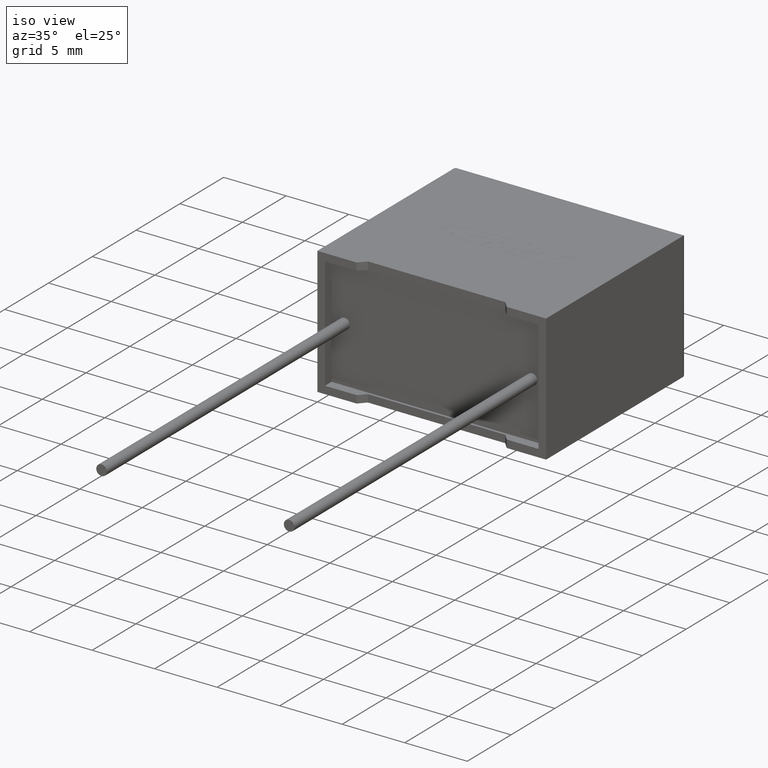
[diagram: clean part render]
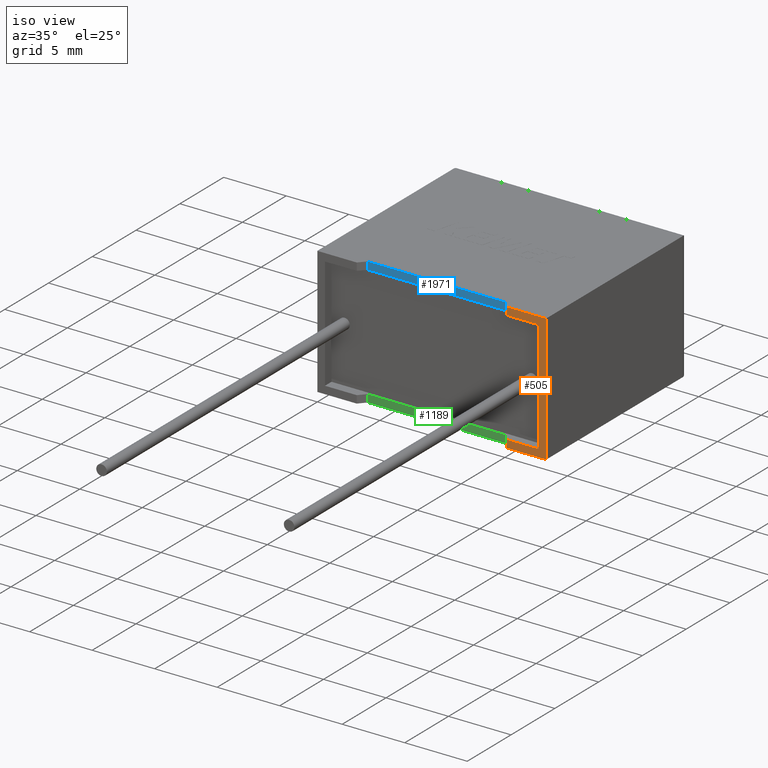
[diagram: same view with three faces highlighted in distinct colors, each labeled with its STEP entity id]
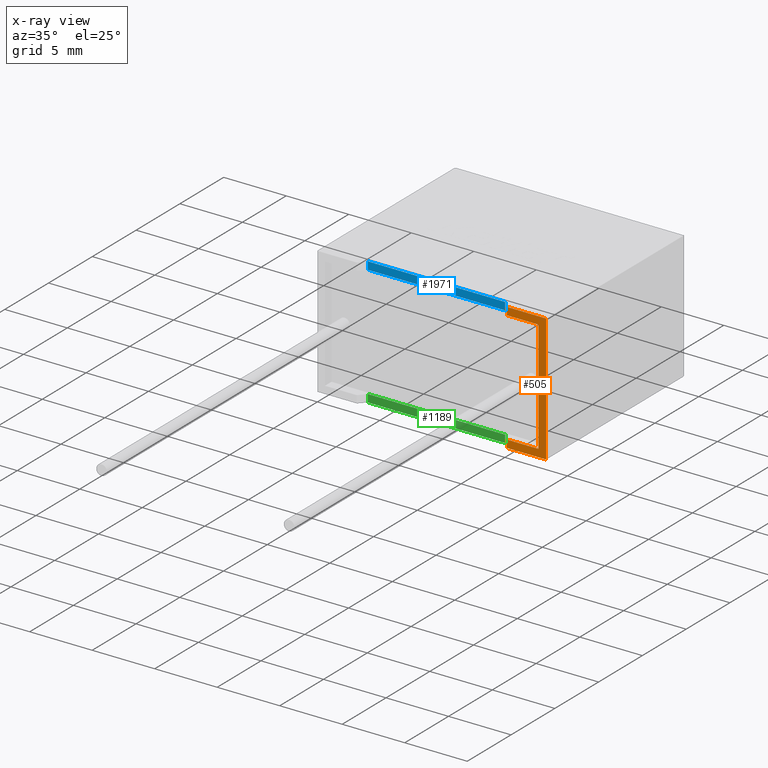
[diagram: x-ray of the same camera — body ghosted, the three highlighted faces saturated]
A machine part, iso view with three faces highlighted in distinct colors.
The next image is the same camera in x-ray (body ghosted, the three faces saturated) — at least one of them is partly hidden behind the body in this view.
Their STEP definitions:

[orange] entity #505 — the highlighted planar face has unit normal (0, 1, 0).
#17 = LINE ( 'NONE', #1197, #3006 ) ;
#83 = FACE_OUTER_BOUND ( 'NONE', #1845, .T. ) ;
#116 = VERTEX_POINT ( 'NONE', #1887 ) ;
#127 = CARTESIAN_POINT ( 'NONE',  ( 15.15000000000000036, 1.928818708657082084E-16, 0.000000000000000000 ) ) ;
#155 = DIRECTION ( 'NONE',  ( 0.000000000000000000, 0.000000000000000000, 1.000000000000000000 ) ) ;
#234 = VECTOR ( 'NONE', #155, 1000.000000000000000 ) ;
#249 = LINE ( 'NONE', #3056, #1912 ) ;
#276 = AXIS2_PLACEMENT_3D ( 'NONE', #1318, #365, #850 ) ;
#347 = DIRECTION ( 'NONE',  ( -0.000000000000000000, -0.000000000000000000, 1.000000000000000000 ) ) ;
#362 = CARTESIAN_POINT ( 'NONE',  ( 18.30000000000000071, 0.000000000000000000, 10.19999999999999929 ) ) ;
#365 = DIRECTION ( 'NONE',  ( 0.000000000000000000, 1.000000000000000000, 0.000000000000000000 ) ) ;
#404 = VERTEX_POINT ( 'NONE', #1679 ) ;
#422 = DIRECTION ( 'NONE',  ( 1.000000000000000000, 0.000000000000000000, 0.000000000000000000 ) ) ;
#505 = ADVANCED_FACE ( 'NONE', ( #83 ), #1005, .F. ) ;
#542 = LINE ( 'NONE', #1889, #2298 ) ;
#739 = DIRECTION ( 'NONE',  ( -1.000000000000000000, 0.000000000000000000, -1.015646055963656327E-16 ) ) ;
#850 = DIRECTION ( 'NONE',  ( 0.000000000000000000, -0.000000000000000000, 1.000000000000000000 ) ) ;
#857 = ORIENTED_EDGE ( 'NONE', *, *, #1819, .F. ) ;
#925 = LINE ( 'NONE', #2189, #1695 ) ;
#997 = VECTOR ( 'NONE', #1326, 1000.000000000000000 ) ;
#1005 = PLANE ( 'NONE',  #276 ) ;
#1020 = EDGE_CURVE ( 'NONE', #1117, #1279, #1981, .T. ) ;
#1030 = ORIENTED_EDGE ( 'NONE', *, *, #1020, .F. ) ;
#1068 = CARTESIAN_POINT ( 'NONE',  ( 17.69000006100000277, 0.000000000000000000, 9.590000060999999576 ) ) ;
#1113 = VERTEX_POINT ( 'NONE', #362 ) ;
#1117 = VERTEX_POINT ( 'NONE', #127 ) ;
#1123 = CARTESIAN_POINT ( 'NONE',  ( 0.000000000000000000, 0.000000000000000000, 10.19999999999999929 ) ) ;
#1194 = VERTEX_POINT ( 'NONE', #1533 ) ;
#1197 = CARTESIAN_POINT ( 'NONE',  ( 15.15000000000000036, 1.928818708657082084E-16, 0.000000000000000000 ) ) ;
#1207 = EDGE_CURVE ( 'NONE', #1544, #1662, #1990, .T. ) ;
#1279 = VERTEX_POINT ( 'NONE', #2414 ) ;
#1318 = CARTESIAN_POINT ( 'NONE',  ( 0.000000000000000000, 0.000000000000000000, 10.19999999999999929 ) ) ;
#1326 = DIRECTION ( 'NONE',  ( 1.000000000000000000, 0.000000000000000000, 0.000000000000000000 ) ) ;
#1429 = LINE ( 'NONE', #1123, #1663 ) ;
#1533 = CARTESIAN_POINT ( 'NONE',  ( 15.15000000000000036, 1.928818708657082084E-16, 9.590000060999999576 ) ) ;
#1544 = VERTEX_POINT ( 'NONE', #1682 ) ;
#1556 = ORIENTED_EDGE ( 'NONE', *, *, #2627, .F. ) ;
#1564 = EDGE_CURVE ( 'NONE', #1113, #116, #542, .T. ) ;
#1569 = CARTESIAN_POINT ( 'NONE',  ( 0.6099999390000000465, 0.000000000000000000, 0.6099999390000000465 ) ) ;
#1662 = VERTEX_POINT ( 'NONE', #1068 ) ;
#1663 = VECTOR ( 'NONE', #2331, 1000.000000000000000 ) ;
#1679 = CARTESIAN_POINT ( 'NONE',  ( 15.15000000000000036, 1.928818708657082084E-16, 10.19999999999999929 ) ) ;
#1682 = CARTESIAN_POINT ( 'NONE',  ( 17.69000006100000277, 0.000000000000000000, 0.6099999390000000465 ) ) ;
#1695 = VECTOR ( 'NONE', #739, 1000.000000000000000 ) ;
#1715 = CARTESIAN_POINT ( 'NONE',  ( 15.15000000000000036, 1.928818708657082084E-16, 0.000000000000000000 ) ) ;
#1793 = VECTOR ( 'NONE', #347, 1000.000000000000000 ) ;
#1819 = EDGE_CURVE ( 'NONE', #1279, #1544, #3001, .T. ) ;
#1845 = EDGE_LOOP ( 'NONE', ( #1030, #2916, #2167, #2596, #1556, #2215, #2959, #857 ) ) ;
#1887 = CARTESIAN_POINT ( 'NONE',  ( 18.30000000000000071, 0.000000000000000000, 0.000000000000000000 ) ) ;
#1889 = CARTESIAN_POINT ( 'NONE',  ( 18.30000000000000071, 0.000000000000000000, 10.19999999999999929 ) ) ;
#1896 = EDGE_CURVE ( 'NONE', #1662, #1194, #925, .T. ) ;
#1912 = VECTOR ( 'NONE', #422, 1000.000000000000000 ) ;
#1981 = LINE ( 'NONE', #1715, #1793 ) ;
#1990 = LINE ( 'NONE', #2965, #234 ) ;
#2167 = ORIENTED_EDGE ( 'NONE', *, *, #1564, .F. ) ;
#2189 = CARTESIAN_POINT ( 'NONE',  ( 17.69000006100000277, 0.000000000000000000, 9.590000060999999576 ) ) ;
#2215 = ORIENTED_EDGE ( 'NONE', *, *, #1896, .F. ) ;
#2298 = VECTOR ( 'NONE', #2408, 1000.000000000000000 ) ;
#2331 = DIRECTION ( 'NONE',  ( 1.000000000000000000, 0.000000000000000000, 0.000000000000000000 ) ) ;
#2408 = DIRECTION ( 'NONE',  ( -0.000000000000000000, -0.000000000000000000, -1.000000000000000000 ) ) ;
#2414 = CARTESIAN_POINT ( 'NONE',  ( 15.15000000000000036, 1.928818708657082084E-16, 0.6099999390000000465 ) ) ;
#2596 = ORIENTED_EDGE ( 'NONE', *, *, #2972, .F. ) ;
#2610 = DIRECTION ( 'NONE',  ( -0.000000000000000000, -0.000000000000000000, 1.000000000000000000 ) ) ;
#2627 = EDGE_CURVE ( 'NONE', #1194, #404, #17, .T. ) ;
#2871 = EDGE_CURVE ( 'NONE', #1117, #116, #249, .T. ) ;
#2916 = ORIENTED_EDGE ( 'NONE', *, *, #2871, .T. ) ;
#2959 = ORIENTED_EDGE ( 'NONE', *, *, #1207, .F. ) ;
#2965 = CARTESIAN_POINT ( 'NONE',  ( 17.69000006100000277, 0.000000000000000000, 0.6099999390000000465 ) ) ;
#2972 = EDGE_CURVE ( 'NONE', #404, #1113, #1429, .T. ) ;
#3001 = LINE ( 'NONE', #1569, #997 ) ;
#3006 = VECTOR ( 'NONE', #2610, 1000.000000000000000 ) ;
#3056 = CARTESIAN_POINT ( 'NONE',  ( 0.000000000000000000, 0.000000000000000000, 0.000000000000000000 ) ) ;

[blue] entity #1971 — the highlighted planar face has unit normal (-0, 1, 0).
#147 = CARTESIAN_POINT ( 'NONE',  ( 14.64180899999999852, 0.5551279999999997328, 9.590000060999999576 ) ) ;
#184 = EDGE_LOOP ( 'NONE', ( #631, #1506, #2136, #1126 ) ) ;
#552 = EDGE_CURVE ( 'NONE', #1150, #1495, #2038, .T. ) ;
#579 = CARTESIAN_POINT ( 'NONE',  ( 14.64180899999999852, 0.5551279999999997328, 10.19999999999999929 ) ) ;
#588 = FACE_OUTER_BOUND ( 'NONE', #184, .T. ) ;
#613 = CARTESIAN_POINT ( 'NONE',  ( 3.658191000000000859, 0.5551279999999997328, 10.19999999999999929 ) ) ;
#631 = ORIENTED_EDGE ( 'NONE', *, *, #2243, .F. ) ;
#682 = LINE ( 'NONE', #1100, #1371 ) ;
#803 = CARTESIAN_POINT ( 'NONE',  ( 9.150000000000000355, 0.5551280000000005099, 0.000000000000000000 ) ) ;
#824 = CARTESIAN_POINT ( 'NONE',  ( 3.658191000000000859, 0.5551279999999997328, 0.000000000000000000 ) ) ;
#858 = CARTESIAN_POINT ( 'NONE',  ( 14.64180899999999852, 0.5551279999999997328, 0.000000000000000000 ) ) ;
#1100 = CARTESIAN_POINT ( 'NONE',  ( 17.69000006100000277, 0.5551280000000017312, 9.590000060999999576 ) ) ;
#1126 = ORIENTED_EDGE ( 'NONE', *, *, #2805, .F. ) ;
#1144 = LINE ( 'NONE', #858, #3052 ) ;
#1150 = VERTEX_POINT ( 'NONE', #579 ) ;
#1268 = CARTESIAN_POINT ( 'NONE',  ( 9.150000000000000355, 0.5551280000000005099, 10.19999999999999929 ) ) ;
#1282 = DIRECTION ( 'NONE',  ( -1.381951777164597720E-16, 1.000000000000000000, 0.000000000000000000 ) ) ;
#1297 = LINE ( 'NONE', #824, #2611 ) ;
#1344 = DIRECTION ( 'NONE',  ( -0.000000000000000000, -0.000000000000000000, 1.000000000000000000 ) ) ;
#1371 = VECTOR ( 'NONE', #2990, 1000.000000000000000 ) ;
#1495 = VERTEX_POINT ( 'NONE', #613 ) ;
#1506 = ORIENTED_EDGE ( 'NONE', *, *, #1864, .T. ) ;
#1526 = DIRECTION ( 'NONE',  ( -1.000000000000000000, -1.381951777164597720E-16, 0.000000000000000000 ) ) ;
#1609 = DIRECTION ( 'NONE',  ( -0.000000000000000000, -0.000000000000000000, 1.000000000000000000 ) ) ;
#1864 = EDGE_CURVE ( 'NONE', #2180, #1150, #1144, .T. ) ;
#1971 = ADVANCED_FACE ( 'NONE', ( #588 ), #2942, .F. ) ;
#2038 = LINE ( 'NONE', #1268, #2534 ) ;
#2105 = AXIS2_PLACEMENT_3D ( 'NONE', #803, #1282, #1526 ) ;
#2136 = ORIENTED_EDGE ( 'NONE', *, *, #552, .T. ) ;
#2180 = VERTEX_POINT ( 'NONE', #147 ) ;
#2225 = CARTESIAN_POINT ( 'NONE',  ( 3.658191000000000859, 0.5551279999999997328, 9.590000060999997800 ) ) ;
#2243 = EDGE_CURVE ( 'NONE', #2180, #2770, #682, .T. ) ;
#2534 = VECTOR ( 'NONE', #2694, 1000.000000000000000 ) ;
#2611 = VECTOR ( 'NONE', #1344, 1000.000000000000000 ) ;
#2694 = DIRECTION ( 'NONE',  ( -1.000000000000000000, -1.381951777164597720E-16, 0.000000000000000000 ) ) ;
#2770 = VERTEX_POINT ( 'NONE', #2225 ) ;
#2805 = EDGE_CURVE ( 'NONE', #2770, #1495, #1297, .T. ) ;
#2942 = PLANE ( 'NONE',  #2105 ) ;
#2990 = DIRECTION ( 'NONE',  ( -1.000000000000000000, -1.381951777164597720E-16, -1.015646055963656327E-16 ) ) ;
#3052 = VECTOR ( 'NONE', #1609, 1000.000000000000000 ) ;

[green] entity #1189 — the highlighted planar face has unit normal (-0, 1, 0).
#166 = LINE ( 'NONE', #626, #1463 ) ;
#351 = CARTESIAN_POINT ( 'NONE',  ( 9.150000000000000355, 0.5551280000000005099, 0.000000000000000000 ) ) ;
#466 = ORIENTED_EDGE ( 'NONE', *, *, #2031, .T. ) ;
#489 = CARTESIAN_POINT ( 'NONE',  ( 3.658191000000000859, 0.5551279999999997328, 0.000000000000000000 ) ) ;
#626 = CARTESIAN_POINT ( 'NONE',  ( 9.150000000000000355, 0.5551280000000005099, 0.000000000000000000 ) ) ;
#734 = ORIENTED_EDGE ( 'NONE', *, *, #1360, .F. ) ;
#770 = EDGE_CURVE ( 'NONE', #3018, #1645, #2198, .T. ) ;
#1025 = PLANE ( 'NONE',  #1156 ) ;
#1156 = AXIS2_PLACEMENT_3D ( 'NONE', #351, #2699, #2007 ) ;
#1189 = ADVANCED_FACE ( 'NONE', ( #2226 ), #1025, .F. ) ;
#1360 = EDGE_CURVE ( 'NONE', #2347, #3018, #2597, .T. ) ;
#1370 = DIRECTION ( 'NONE',  ( -1.000000000000000000, -1.381951777164597720E-16, 0.000000000000000000 ) ) ;
#1443 = VERTEX_POINT ( 'NONE', #2228 ) ;
#1463 = VECTOR ( 'NONE', #1370, 1000.000000000000000 ) ;
#1644 = VECTOR ( 'NONE', #2155, 1000.000000000000000 ) ;
#1645 = VERTEX_POINT ( 'NONE', #1964 ) ;
#1807 = EDGE_CURVE ( 'NONE', #1443, #2347, #166, .T. ) ;
#1875 = CARTESIAN_POINT ( 'NONE',  ( 3.658191000000000859, 0.5551279999999997328, 0.000000000000000000 ) ) ;
#1915 = EDGE_LOOP ( 'NONE', ( #734, #2885, #466, #2326 ) ) ;
#1960 = CARTESIAN_POINT ( 'NONE',  ( 0.6099999390000000465, 0.5551279999999993997, 0.6099999390000000465 ) ) ;
#1964 = CARTESIAN_POINT ( 'NONE',  ( 14.64180899999999852, 0.5551279999999997328, 0.6099999390000000465 ) ) ;
#2007 = DIRECTION ( 'NONE',  ( -1.000000000000000000, -1.381951777164597720E-16, 0.000000000000000000 ) ) ;
#2031 = EDGE_CURVE ( 'NONE', #1443, #1645, #2549, .T. ) ;
#2053 = VECTOR ( 'NONE', #2114, 1000.000000000000000 ) ;
#2114 = DIRECTION ( 'NONE',  ( -0.000000000000000000, -0.000000000000000000, 1.000000000000000000 ) ) ;
#2155 = DIRECTION ( 'NONE',  ( 1.000000000000000000, 1.381951777164597720E-16, 0.000000000000000000 ) ) ;
#2198 = LINE ( 'NONE', #1960, #1644 ) ;
#2226 = FACE_OUTER_BOUND ( 'NONE', #1915, .T. ) ;
#2228 = CARTESIAN_POINT ( 'NONE',  ( 14.64180899999999852, 0.5551279999999997328, 0.000000000000000000 ) ) ;
#2326 = ORIENTED_EDGE ( 'NONE', *, *, #770, .F. ) ;
#2347 = VERTEX_POINT ( 'NONE', #489 ) ;
#2549 = LINE ( 'NONE', #2791, #2053 ) ;
#2597 = LINE ( 'NONE', #1875, #3000 ) ;
#2682 = CARTESIAN_POINT ( 'NONE',  ( 3.658191000000000859, 0.5551279999999997328, 0.6099999390000000465 ) ) ;
#2699 = DIRECTION ( 'NONE',  ( -1.381951777164597720E-16, 1.000000000000000000, 0.000000000000000000 ) ) ;
#2791 = CARTESIAN_POINT ( 'NONE',  ( 14.64180899999999852, 0.5551279999999997328, 0.000000000000000000 ) ) ;
#2807 = DIRECTION ( 'NONE',  ( -0.000000000000000000, -0.000000000000000000, 1.000000000000000000 ) ) ;
#2885 = ORIENTED_EDGE ( 'NONE', *, *, #1807, .F. ) ;
#3000 = VECTOR ( 'NONE', #2807, 1000.000000000000000 ) ;
#3018 = VERTEX_POINT ( 'NONE', #2682 ) ;